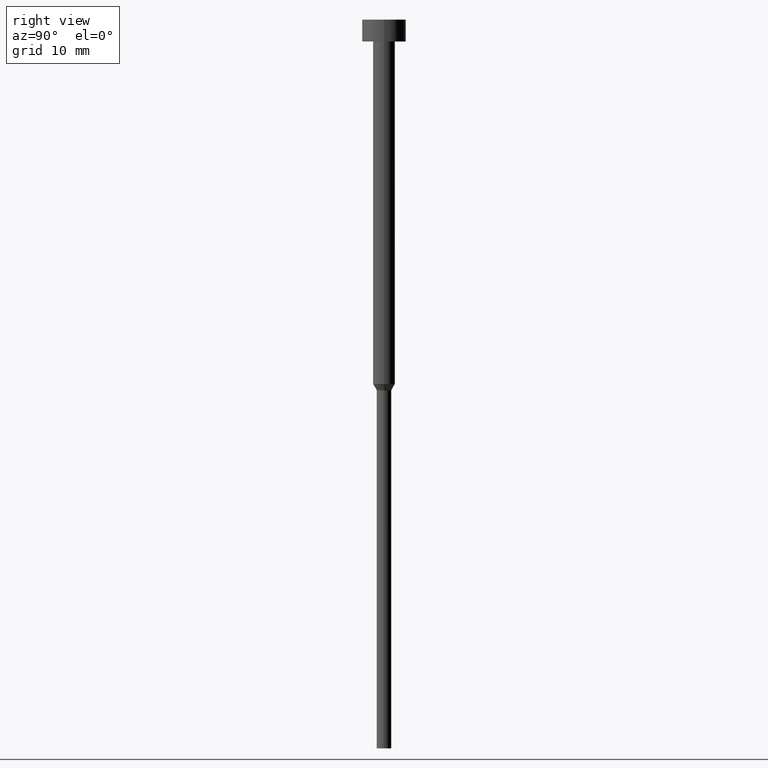
[diagram: clean part render]
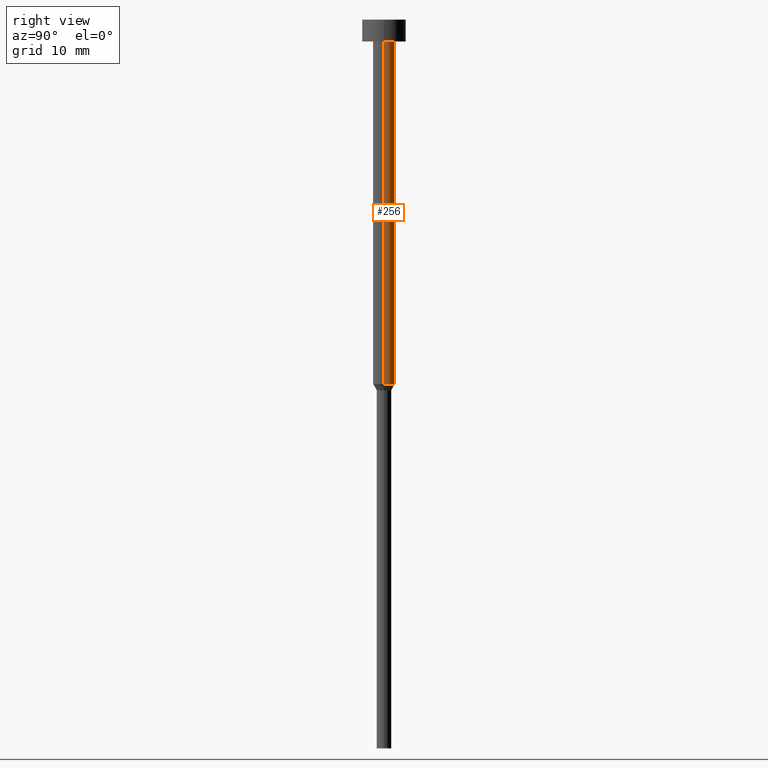
[diagram: same view with one face highlighted and labeled with its STEP entity id]
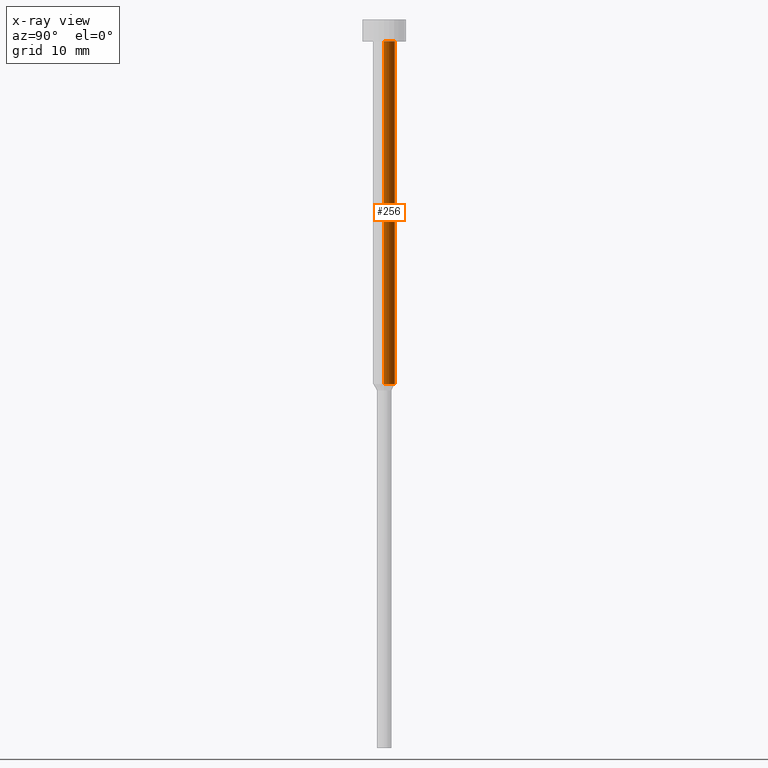
[diagram: x-ray of the same camera — body ghosted, the highlighted face saturated]
A machine part, right view. The second image highlights one B-rep face of the part: STEP entity #256.
The next image is the same camera in x-ray: the body ghosted, the highlighted face saturated — about 0% of this face is hidden behind the body in this view.
In plain terms, the highlighted cylindrical surface (edge-blend (fillet) strip) has radius 1.5 mm, axis along (-0, -0, 1).
Its self-contained STEP definition (entity closure, byte-faithful):
#12 = AXIS2_PLACEMENT_3D ( 'NONE', #139, #279, #30 ) ;
#30 = DIRECTION ( 'NONE',  ( 1.000000000000000000, 0.000000000000000000, 0.000000000000000000 ) ) ;
#32 = LINE ( 'NONE', #336, #332 ) ;
#34 = VERTEX_POINT ( 'NONE', #176 ) ;
#52 = DIRECTION ( 'NONE',  ( 1.000000000000000000, 0.000000000000000000, 0.000000000000000000 ) ) ;
#64 = AXIS2_PLACEMENT_3D ( 'NONE', #276, #293, #328 ) ;
#73 = ORIENTED_EDGE ( 'NONE', *, *, #251, .T. ) ;
#106 = DIRECTION ( 'NONE',  ( -0.000000000000000000, -0.000000000000000000, 1.000000000000000000 ) ) ;
#125 = CIRCLE ( 'NONE', #141, 1.500000000000000000 ) ;
#128 = LINE ( 'NONE', #157, #221 ) ;
#130 = CARTESIAN_POINT ( 'NONE',  ( -1.500000000000000000, 1.836970198721029934E-16, -50.00000000000000000 ) ) ;
#139 = CARTESIAN_POINT ( 'NONE',  ( 0.000000000000000000, 0.000000000000000000, -3.000000000000000888 ) ) ;
#141 = AXIS2_PLACEMENT_3D ( 'NONE', #326, #296, #52 ) ;
#149 = ORIENTED_EDGE ( 'NONE', *, *, #234, .T. ) ;
#157 = CARTESIAN_POINT ( 'NONE',  ( -1.500000000000000000, 1.836970198721029934E-16, 0.000000000000000000 ) ) ;
#176 = CARTESIAN_POINT ( 'NONE',  ( -1.500000000000000000, 1.836970198721029934E-16, -3.000000000000000888 ) ) ;
#192 = VERTEX_POINT ( 'NONE', #130 ) ;
#211 = ORIENTED_EDGE ( 'NONE', *, *, #314, .F. ) ;
#221 = VECTOR ( 'NONE', #106, 1000.000000000000000 ) ;
#224 = CYLINDRICAL_SURFACE ( 'NONE', #64, 1.500000000000000000 ) ;
#234 = EDGE_CURVE ( 'NONE', #290, #192, #125, .T. ) ;
#246 = CARTESIAN_POINT ( 'NONE',  ( 1.500000000000000000, 0.000000000000000000, -3.000000000000000888 ) ) ;
#247 = VERTEX_POINT ( 'NONE', #246 ) ;
#249 = CIRCLE ( 'NONE', #12, 1.500000000000000000 ) ;
#251 = EDGE_CURVE ( 'NONE', #192, #34, #128, .T. ) ;
#256 = ADVANCED_FACE ( 'NONE', ( #327 ), #224, .T. ) ;
#276 = CARTESIAN_POINT ( 'NONE',  ( 0.000000000000000000, 0.000000000000000000, 0.000000000000000000 ) ) ;
#279 = DIRECTION ( 'NONE',  ( -0.000000000000000000, -0.000000000000000000, 1.000000000000000000 ) ) ;
#280 = DIRECTION ( 'NONE',  ( -0.000000000000000000, -0.000000000000000000, 1.000000000000000000 ) ) ;
#290 = VERTEX_POINT ( 'NONE', #331 ) ;
#293 = DIRECTION ( 'NONE',  ( -0.000000000000000000, -0.000000000000000000, 1.000000000000000000 ) ) ;
#296 = DIRECTION ( 'NONE',  ( -0.000000000000000000, -0.000000000000000000, 1.000000000000000000 ) ) ;
#297 = EDGE_LOOP ( 'NONE', ( #149, #73, #211, #337 ) ) ;
#310 = EDGE_CURVE ( 'NONE', #290, #247, #32, .T. ) ;
#314 = EDGE_CURVE ( 'NONE', #247, #34, #249, .T. ) ;
#326 = CARTESIAN_POINT ( 'NONE',  ( 0.000000000000000000, 0.000000000000000000, -50.00000000000000000 ) ) ;
#327 = FACE_OUTER_BOUND ( 'NONE', #297, .T. ) ;
#328 = DIRECTION ( 'NONE',  ( 1.000000000000000000, 0.000000000000000000, 0.000000000000000000 ) ) ;
#331 = CARTESIAN_POINT ( 'NONE',  ( 1.500000000000000000, 0.000000000000000000, -50.00000000000000000 ) ) ;
#332 = VECTOR ( 'NONE', #280, 1000.000000000000000 ) ;
#336 = CARTESIAN_POINT ( 'NONE',  ( 1.500000000000000000, 0.000000000000000000, 0.000000000000000000 ) ) ;
#337 = ORIENTED_EDGE ( 'NONE', *, *, #310, .F. ) ;